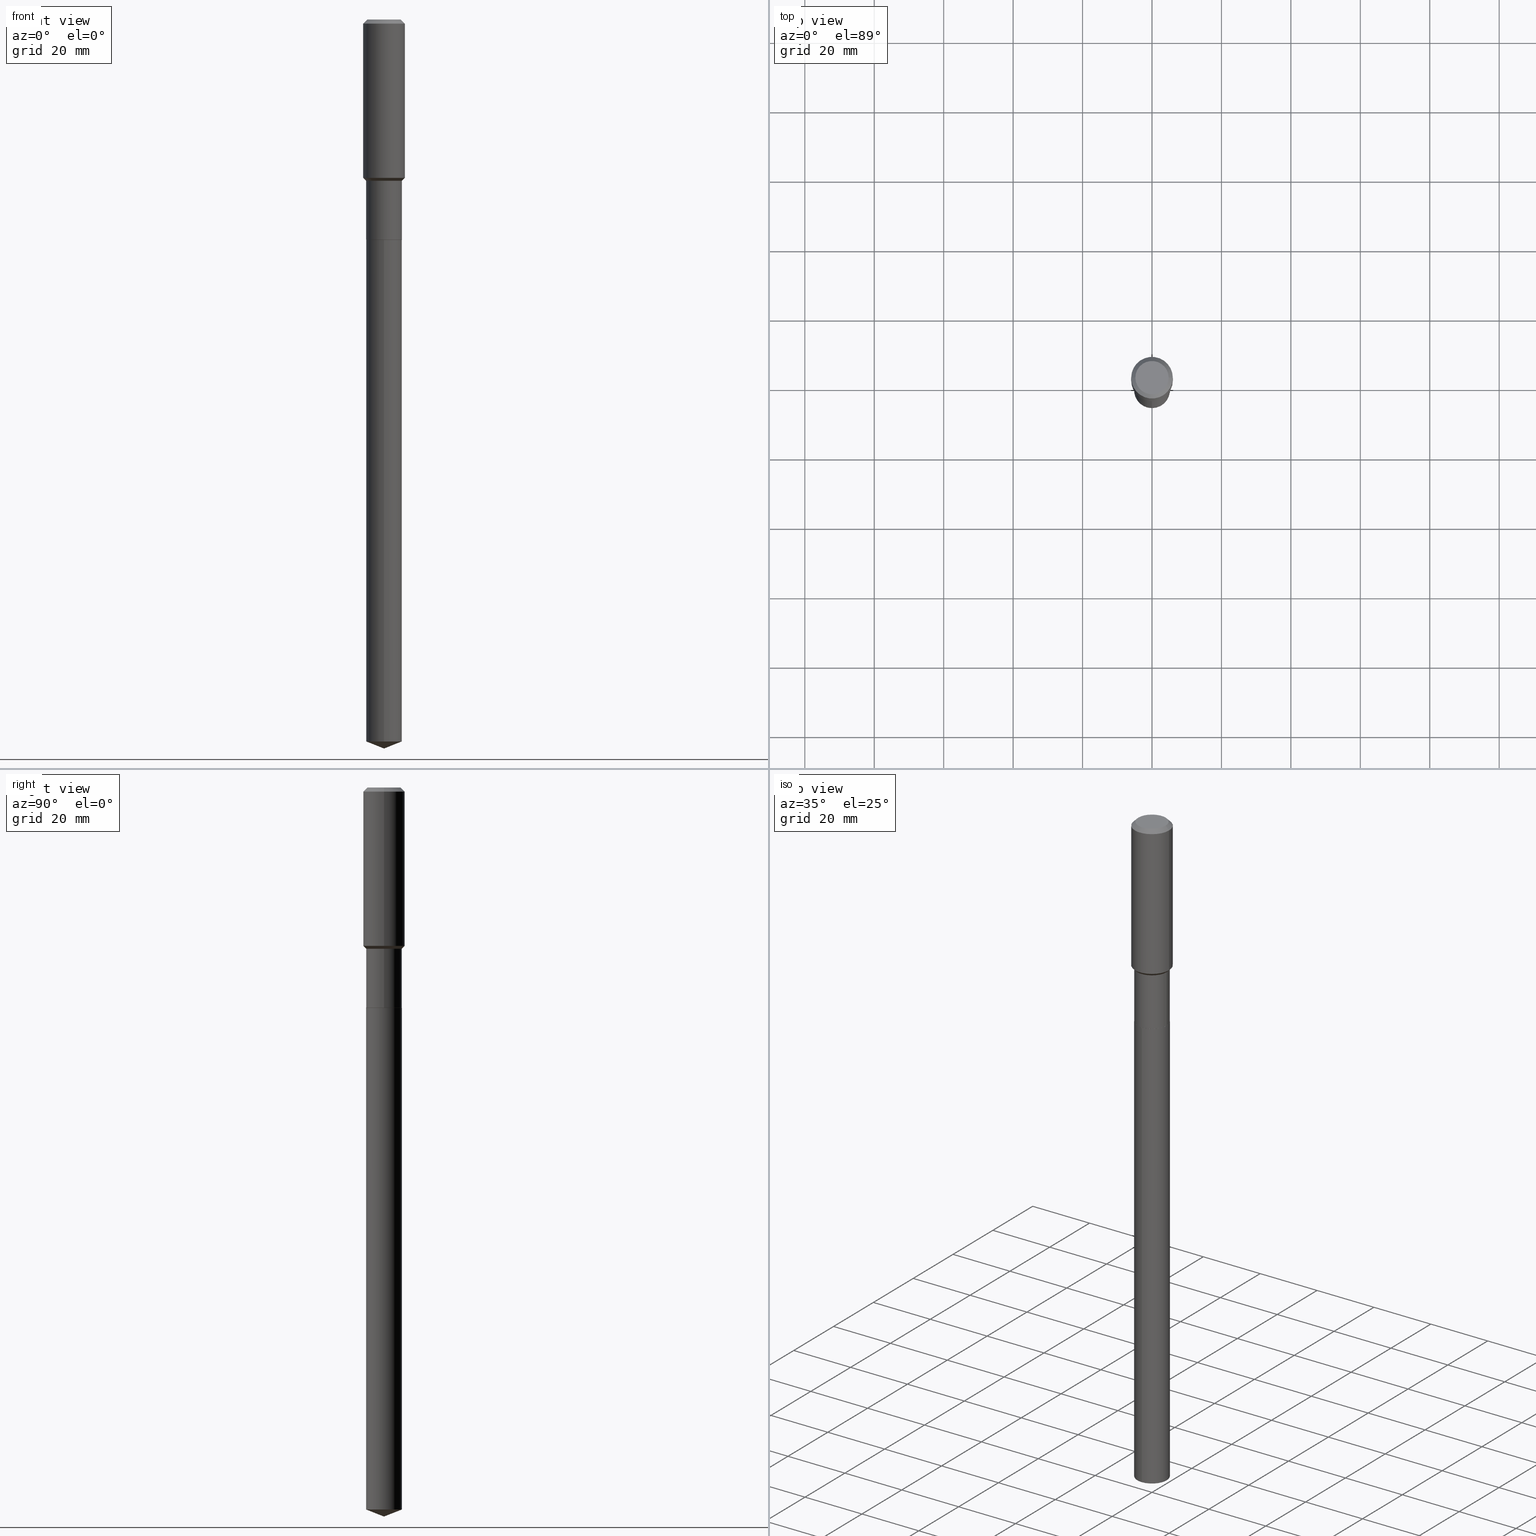
[diagram: canonical four-view strip — front | top / right | iso, engineering-drawing reading convention]
A machine part, canonical four-view strip (front | top / right | iso — engineering-drawing reading convention). The complete STEP part file that produces these views, byte-faithful:
ISO-10303-21;
HEADER;
FILE_DESCRIPTION (( 'STEP AP203' ),
    '1' );
FILE_NAME ('56531.STEP',
    '2024-04-24T18:19:59',
    ( '' ),
    ( '' ),
    'SwSTEP 2.0',
    'SolidWorks 2023',
    '' );
FILE_SCHEMA (( 'CONFIG_CONTROL_DESIGN' ));
ENDSEC;

DATA;
#1 = DIRECTION ( 'NONE',  ( -2.445468806185136597E-29, 3.491481338843145583E-15, 1.000000000000000000 ) ) ;
#2 = CARTESIAN_POINT ( 'NONE',  ( 6.111960187298512242E-29, -8.726259310170675626E-15, -2.499300000000000299 ) ) ;
#3 = LINE ( 'NONE', #21, #351 ) ;
#4 = EDGE_LOOP ( 'NONE', ( #82, #332, #108, #342 ) ) ;
#5 = AXIS2_PLACEMENT_3D ( 'NONE', #53, #347, #23 ) ;
#6 = CIRCLE ( 'NONE', #385, 0.2030999999999999472 ) ;
#7 = PLANE ( 'NONE',  #85 ) ;
#8 = ORIENTED_EDGE ( 'NONE', *, *, #418, .T. ) ;
#9 = FACE_OUTER_BOUND ( 'NONE', #257, .T. ) ;
#10 = ADVANCED_FACE ( 'NONE', ( #170 ), #208, .T. ) ;
#11 = CARTESIAN_POINT ( 'NONE',  ( 6.111960187298512242E-29, -8.726259310170675626E-15, -2.499300000000000299 ) ) ;
#12 = DIRECTION ( 'NONE',  ( -2.445519969606461702E-29, 3.491408069911766717E-15, 1.000000000000000000 ) ) ;
#13 = CYLINDRICAL_SURFACE ( 'NONE', #57, 0.2030999999999999750 ) ;
#14 = DIRECTION ( 'NONE',  ( 1.000000000000000000, -6.982962677686266711E-15, 4.876185090822587894E-29 ) ) ;
#15 = EDGE_CURVE ( 'NONE', #116, #111, #68, .T. ) ;
#16 = CARTESIAN_POINT ( 'NONE',  ( 0.000000000000000000, 0.000000000000000000, 0.000000000000000000 ) ) ;
#17 = CIRCLE ( 'NONE', #339, 0.2361999999999999933 ) ;
#18 = EDGE_LOOP ( 'NONE', ( #345, #86, #25, #431 ) ) ;
#19 = CARTESIAN_POINT ( 'NONE',  ( 6.111960187298512242E-29, -8.726259310170675626E-15, -2.499300000000000299 ) ) ;
#20 = CARTESIAN_POINT ( 'NONE',  ( 6.111960187298512242E-29, -8.726259310170675626E-15, -2.499300000000000299 ) ) ;
#21 = CARTESIAN_POINT ( 'NONE',  ( -1.418239719838019639E-15, -0.2031000000000087458, -2.499299999999999855 ) ) ;
#22 = COORDINATED_UNIVERSAL_TIME_OFFSET ( 5, 0, .BEHIND. ) ;
#23 = DIRECTION ( 'NONE',  ( -6.982962677686266711E-15, -1.000000000000000000, 5.380301316916323039E-15 ) ) ;
#24 = MANIFOLD_SOLID_BREP ( 'Body-Move/Copy2[1]', #369 ) ;
#25 = ORIENTED_EDGE ( 'NONE', *, *, #46, .T. ) ;
#26 = PERSON_AND_ORGANIZATION_ROLE ( 'creator' ) ;
#27 = ORIENTED_EDGE ( 'NONE', *, *, #209, .F. ) ;
#28 = FACE_OUTER_BOUND ( 'NONE', #18, .T. ) ;
#29 = AXIS2_PLACEMENT_3D ( 'NONE', #481, #239, #37 ) ;
#30 = APPROVAL_STATUS ( 'not_yet_approved' ) ;
#31 = APPROVAL_DATE_TIME ( #380, #429 ) ;
#32 = EDGE_CURVE ( 'NONE', #459, #427, #106, .T. ) ;
#33 = APPLICATION_CONTEXT ( 'configuration controlled 3d designs of mechanical parts and assemblies' ) ;
#34 = DIRECTION ( 'NONE',  ( 1.000000000000000000, -6.982962677686266711E-15, 0.000000000000000000 ) ) ;
#35 = LOCAL_TIME ( 14, 19, 59.00000000000000000, #286 ) ;
#36 = AXIS2_PLACEMENT_3D ( 'NONE', #236, #387, #355 ) ;
#37 = DIRECTION ( 'NONE',  ( 1.000000000000000000, -6.982962677686266711E-15, 4.876176775795935793E-29 ) ) ;
#38 = APPROVAL ( #210, 'UNSPECIFIED' ) ;
#39 = LINE ( 'NONE', #103, #489 ) ;
#40 = LINE ( 'NONE', #366, #95 ) ;
#41 = DIRECTION ( 'NONE',  ( 1.000000000000000000, -6.982962677686261189E-15, 0.000000000000000000 ) ) ;
#42 = AXIS2_PLACEMENT_3D ( 'NONE', #2, #144, #292 ) ;
#43 = LOCAL_TIME ( 14, 19, 59.00000000000000000, #479 ) ;
#44 = CONICAL_SURFACE ( 'NONE', #306, 99.94676754584408229, 1.195550537616133502 ) ;
#45 = DIRECTION ( 'NONE',  ( -2.445519969606461983E-29, 3.491408069911766717E-15, 1.000000000000000000 ) ) ;
#46 = EDGE_CURVE ( 'NONE', #336, #465, #139, .T. ) ;
#47 = EDGE_LOOP ( 'NONE', ( #240, #123, #268, #426 ) ) ;
#48 = CARTESIAN_POINT ( 'NONE',  ( -1.418239719837880602E-15, -0.2031000000000285910, -8.187996782402608531 ) ) ;
#49 = ORIENTED_EDGE ( 'NONE', *, *, #396, .F. ) ;
#50 = VERTEX_POINT ( 'NONE', #285 ) ;
#51 = ORIENTED_EDGE ( 'NONE', *, *, #169, .T. ) ;
#52 = DIRECTION ( 'NONE',  ( 2.438088387897960049E-29, -3.491481338843145188E-15, -1.000000000000000000 ) ) ;
#53 = CARTESIAN_POINT ( 'NONE',  ( 2.002378176970011888E-28, -2.858782116353224988E-14, -8.187996782402610307 ) ) ;
#54 = ORIENTED_EDGE ( 'NONE', *, *, #135, .T. ) ;
#55 = CALENDAR_DATE ( 2024, 24, 4 ) ;
#56 = AXIS2_PLACEMENT_3D ( 'NONE', #293, #69, #458 ) ;
#57 = AXIS2_PLACEMENT_3D ( 'NONE', #16, #229, #460 ) ;
#58 = VERTEX_POINT ( 'NONE', #87 ) ;
#59 = CARTESIAN_POINT ( 'NONE',  ( 0.000000000000000000, 0.000000000000000000, 0.000000000000000000 ) ) ;
#60 = AXIS2_PLACEMENT_3D ( 'NONE', #204, #64, #34 ) ;
#61 = APPROVAL_PERSON_ORGANIZATION ( #291, #409, #398 ) ;
#62 = DIRECTION ( 'NONE',  ( 2.445468806185136597E-29, -3.491481338843145583E-15, -1.000000000000000000 ) ) ;
#63 = ADVANCED_FACE ( 'NONE', ( #28 ), #372, .T. ) ;
#64 = DIRECTION ( 'NONE',  ( -2.445468806185136597E-29, 3.491481338843145583E-15, 1.000000000000000000 ) ) ;
#65 = ORIENTED_EDGE ( 'NONE', *, *, #352, .F. ) ;
#66 = PERSON_AND_ORGANIZATION ( #341, #245 ) ;
#67 = CARTESIAN_POINT ( 'NONE',  ( 4.392061975908506041E-29, -6.270700484562290099E-15, -1.796000000000000263 ) ) ;
#68 = CIRCLE ( 'NONE', #440, 0.2026000000000000023 ) ;
#69 = DIRECTION ( 'NONE',  ( -2.445519969606461983E-29, 3.491408069911766717E-15, 1.000000000000000000 ) ) ;
#70 = EDGE_CURVE ( 'NONE', #238, #459, #40, .T. ) ;
#71 = CARTESIAN_POINT ( 'NONE',  ( -0.2030999999999999472, -6.112278746860862354E-15, -1.829100000000000392 ) ) ;
#72 = APPROVAL_PERSON_ORGANIZATION ( #66, #38, #89 ) ;
#73 = AXIS2_PLACEMENT_3D ( 'NONE', #67, #221, #184 ) ;
#74 = DIRECTION ( 'NONE',  ( 1.000000000000000000, -6.982962677686266711E-15, 0.000000000000000000 ) ) ;
#75 = EDGE_LOOP ( 'NONE', ( #51, #83 ) ) ;
#76 = AXIS2_PLACEMENT_3D ( 'NONE', #397, #1, #294 ) ;
#77 = CIRCLE ( 'NONE', #118, 0.2026000000000000023 ) ;
#78 = ORIENTED_EDGE ( 'NONE', *, *, #358, .F. ) ;
#79 = ADVANCED_FACE ( 'NONE', ( #9 ), #469, .T. ) ;
#80 = ORIENTED_EDGE ( 'NONE', *, *, #137, .F. ) ;
#81 = ORIENTED_EDGE ( 'NONE', *, *, #177, .T. ) ;
#82 = ORIENTED_EDGE ( 'NONE', *, *, #442, .F. ) ;
#83 = ORIENTED_EDGE ( 'NONE', *, *, #451, .T. ) ;
#84 = EDGE_CURVE ( 'NONE', #111, #388, #433, .T. ) ;
#85 = AXIS2_PLACEMENT_3D ( 'NONE', #187, #335, #148 ) ;
#86 = ORIENTED_EDGE ( 'NONE', *, *, #131, .T. ) ;
#87 = CARTESIAN_POINT ( 'NONE',  ( -0.1889600000000000168, 1.401969416799070942E-15, 3.855188123706346622E-18 ) ) ;
#88 = ORIENTED_EDGE ( 'NONE', *, *, #161, .F. ) ;
#89 = APPROVAL_ROLE ( '' ) ;
#90 = FACE_OUTER_BOUND ( 'NONE', #4, .T. ) ;
#91 = APPROVAL_DATE_TIME ( #172, #38 ) ;
#92 = DIRECTION ( 'NONE',  ( -6.982962677686266711E-15, -1.000000000000000000, 5.380301316916323039E-15 ) ) ;
#93 = ORIENTED_EDGE ( 'NONE', *, *, #32, .F. ) ;
#94 = CARTESIAN_POINT ( 'NONE',  ( 1.155239464041864981E-30, -1.649375784469511119E-16, -0.04724000000000026789 ) ) ;
#95 = VECTOR ( 'NONE', #146, 39.37007874015748143 ) ;
#96 = DIRECTION ( 'NONE',  ( 1.000000000000000000, -6.982962677686266711E-15, 0.000000000000000000 ) ) ;
#97 = AXIS2_PLACEMENT_3D ( 'NONE', #193, #343, #307 ) ;
#98 = PLANE ( 'NONE',  #154 ) ;
#99 = ORIENTED_EDGE ( 'NONE', *, *, #177, .F. ) ;
#100 = DIRECTION ( 'NONE',  ( 1.000000000000000000, -6.982962677686266711E-15, 0.000000000000000000 ) ) ;
#101 = DIRECTION ( 'NONE',  ( -2.445468806185136877E-29, 3.491481338843145188E-15, 1.000000000000000000 ) ) ;
#102 = PRODUCT_DEFINITION_SHAPE ( 'NONE', 'NONE',  #467 ) ;
#103 = CARTESIAN_POINT ( 'NONE',  ( 0.2026000000000000023, -1.014100754866991103E-14, -2.499300000000000299 ) ) ;
#104 = CARTESIAN_POINT ( 'NONE',  ( -0.2362000000000001043, 1.678301941865357380E-15, -1.161852468318209317E-29 ) ) ;
#105 = EDGE_CURVE ( 'NONE', #388, #200, #252, .T. ) ;
#106 = CIRCLE ( 'NONE', #350, 0.2031000000000000028 ) ;
#107 = AXIS2_PLACEMENT_3D ( 'NONE', #308, #52, #463 ) ;
#108 = ORIENTED_EDGE ( 'NONE', *, *, #224, .T. ) ;
#109 = CARTESIAN_POINT ( 'NONE',  ( 0.2361999999999999933, -1.814313362916447440E-15, -0.04724000000000026789 ) ) ;
#110 = LINE ( 'NONE', #149, #378 ) ;
#111 = VERTEX_POINT ( 'NONE', #186 ) ;
#112 = CARTESIAN_POINT ( 'NONE',  ( -0.2030999999999999750, 1.443112296328763300E-15, -9.990357168307712801E-30 ) ) ;
#113 = CONICAL_SURFACE ( 'NONE', #406, 0.2030999999999999472, 0.7853981633974482790 ) ;
#114 = FACE_OUTER_BOUND ( 'NONE', #75, .T. ) ;
#115 = LINE ( 'NONE', #414, #228 ) ;
#116 = VERTEX_POINT ( 'NONE', #248 ) ;
#117 = APPROVAL_PERSON_ORGANIZATION ( #428, #429, #319 ) ;
#118 = AXIS2_PLACEMENT_3D ( 'NONE', #182, #365, #41 ) ;
#119 = DIRECTION ( 'NONE',  ( -2.445468806185136597E-29, 3.491481338843145583E-15, 1.000000000000000000 ) ) ;
#120 = APPLICATION_PROTOCOL_DEFINITION ( 'international standard', 'config_control_design', 1994, #33 ) ;
#121 = LINE ( 'NONE', #222, #368 ) ;
#122 = DATE_AND_TIME ( #55, #35 ) ;
#123 = ORIENTED_EDGE ( 'NONE', *, *, #287, .T. ) ;
#124 = ORIENTED_EDGE ( 'NONE', *, *, #15, .T. ) ;
#125 = EDGE_CURVE ( 'NONE', #140, #379, #371, .T. ) ;
#126 = ORIENTED_EDGE ( 'NONE', *, *, #370, .T. ) ;
#127 = CARTESIAN_POINT ( 'NONE',  ( 1.155239464041864981E-30, -1.649375784469511119E-16, -0.04724000000000026789 ) ) ;
#128 = CIRCLE ( 'NONE', #60, 0.2030999999999999472 ) ;
#129 = DIRECTION ( 'NONE',  ( 6.982962677686265922E-15, 1.000000000000000000, -3.491408069911766717E-15 ) ) ;
#130 = ORIENTED_EDGE ( 'NONE', *, *, #143, .T. ) ;
#131 = EDGE_CURVE ( 'NONE', #484, #336, #181, .T. ) ;
#132 = DIRECTION ( 'NONE',  ( 1.000000000000000000, -6.982962677686266711E-15, 4.876185090822587894E-29 ) ) ;
#133 = LINE ( 'NONE', #104, #260 ) ;
#134 = DIRECTION ( 'NONE',  ( 2.445519969606461422E-29, -3.491408069911766717E-15, -1.000000000000000000 ) ) ;
#135 = EDGE_CURVE ( 'NONE', #379, #465, #133, .T. ) ;
#136 = CALENDAR_DATE ( 2024, 24, 4 ) ;
#137 = EDGE_CURVE ( 'NONE', #454, #336, #110, .T. ) ;
#138 = CARTESIAN_POINT ( 'NONE',  ( 2.002378176970011888E-28, -2.858782116353224988E-14, -8.187996782402610307 ) ) ;
#139 = CIRCLE ( 'NONE', #410, 0.2361999999999999933 ) ;
#140 = VERTEX_POINT ( 'NONE', #71 ) ;
#141 = CIRCLE ( 'NONE', #262, 0.2031000000000000028 ) ;
#142 = DIRECTION ( 'NONE',  ( -6.982962677686266711E-15, -1.000000000000000000, 2.690150658458161520E-15 ) ) ;
#143 = EDGE_CURVE ( 'NONE', #58, #465, #246, .T. ) ;
#144 = DIRECTION ( 'NONE',  ( -2.445468806185136597E-29, 3.491481338843145583E-15, 1.000000000000000000 ) ) ;
#145 = CYLINDRICAL_SURFACE ( 'NONE', #56, 0.2031000000000000028 ) ;
#146 = DIRECTION ( 'NONE',  ( 6.611014441532104454E-15, 0.9304175679820322342, 0.3665012267242774846 ) ) ;
#147 = AXIS2_PLACEMENT_3D ( 'NONE', #59, #163, #317 ) ;
#148 = DIRECTION ( 'NONE',  ( 1.000000000000000000, -6.982962677686265922E-15, 4.876176775795935793E-29 ) ) ;
#149 = CARTESIAN_POINT ( 'NONE',  ( 0.2362000000000001043, -1.649375784469496920E-15, 1.151752954443000508E-29 ) ) ;
#150 = DIRECTION ( 'NONE',  ( -2.445519969606461983E-29, 3.491408069911766717E-15, 1.000000000000000000 ) ) ;
#151 = ADVANCED_FACE ( 'NONE', ( #255 ), #145, .T. ) ;
#152 = ORIENTED_EDGE ( 'NONE', *, *, #131, .F. ) ;
#153 = LOCAL_TIME ( 14, 19, 59.00000000000000000, #471 ) ;
#154 = AXIS2_PLACEMENT_3D ( 'NONE', #354, #134, #129 ) ;
#155 = MECHANICAL_CONTEXT ( 'NONE', #482, 'mechanical' ) ;
#156 = DESIGN_CONTEXT ( 'detailed design', #33, 'design' ) ;
#157 = PERSON_AND_ORGANIZATION ( #341, #245 ) ;
#158 = ORIENTED_EDGE ( 'NONE', *, *, #401, .T. ) ;
#159 = ORIENTED_EDGE ( 'NONE', *, *, #125, .T. ) ;
#160 = CC_DESIGN_APPROVAL ( #409, ( #467 ) ) ;
#161 = EDGE_CURVE ( 'NONE', #427, #459, #421, .T. ) ;
#162 = CC_DESIGN_PERSON_AND_ORGANIZATION_ASSIGNMENT ( #157, #400, ( #243 ) ) ;
#163 = DIRECTION ( 'NONE',  ( -2.445468806185136597E-29, 3.491481338843145583E-15, 1.000000000000000000 ) ) ;
#164 = CALENDAR_DATE ( 2024, 24, 4 ) ;
#165 = DIRECTION ( 'NONE',  ( 1.000000000000000000, -6.982962677686269866E-15, 0.000000000000000000 ) ) ;
#166 = DATE_AND_TIME ( #136, #441 ) ;
#167 = EDGE_LOOP ( 'NONE', ( #81, #231, #27, #298 ) ) ;
#168 = DATE_AND_TIME ( #206, #185 ) ;
#169 = EDGE_CURVE ( 'NONE', #58, #484, #270, .T. ) ;
#170 = FACE_OUTER_BOUND ( 'NONE', #47, .T. ) ;
#171 = DIRECTION ( 'NONE',  ( -2.445519969606461983E-29, 3.491408069911766717E-15, 1.000000000000000000 ) ) ;
#172 = DATE_AND_TIME ( #164, #153 ) ;
#173 = DIRECTION ( 'NONE',  ( 1.000000000000000000, -6.982962677686261189E-15, 0.000000000000000000 ) ) ;
#174 = ORIENTED_EDGE ( 'NONE', *, *, #15, .F. ) ;
#175 = DIRECTION ( 'NONE',  ( -6.982962677686265922E-15, -1.000000000000000000, 3.498627837349860255E-15 ) ) ;
#176 =( NAMED_UNIT ( * ) SI_UNIT ( $, .STERADIAN. ) SOLID_ANGLE_UNIT ( ) );
#177 = EDGE_CURVE ( 'NONE', #200, #388, #326, .T. ) ;
#178 = DIRECTION ( 'NONE',  ( 0.7071067811864267805, -2.468850131080992517E-15, 0.7071067811866682540 ) ) ;
#179 = DIRECTION ( 'NONE',  ( -0.7071067811865454633, 2.468850131082235367E-15, -0.7071067811865495711 ) ) ;
#180 = DIRECTION ( 'NONE',  ( 1.000000000000000000, -6.982962677686266711E-15, 0.000000000000000000 ) ) ;
#181 = LINE ( 'NONE', #402, #227 ) ;
#182 = CARTESIAN_POINT ( 'NONE',  ( 6.111960187298512242E-29, -8.726259310170675626E-15, -2.499300000000000299 ) ) ;
#183 = VECTOR ( 'NONE', #207, 39.37007874015748143 ) ;
#184 = DIRECTION ( 'NONE',  ( 1.000000000000000000, -6.982962677686266711E-15, 0.000000000000000000 ) ) ;
#185 = LOCAL_TIME ( 14, 19, 59.00000000000000000, #361 ) ;
#186 = CARTESIAN_POINT ( 'NONE',  ( -0.2026000000000000023, -7.284050500346599855E-15, -2.499300000000000299 ) ) ;
#187 = CARTESIAN_POINT ( 'NONE',  ( 6.111960187298512242E-29, -8.726259310170675626E-15, -2.499300000000000299 ) ) ;
#188 = CC_DESIGN_PERSON_AND_ORGANIZATION_ASSIGNMENT ( #413, #26, ( #218 ) ) ;
#189 = EDGE_LOOP ( 'NONE', ( #124, #241, #99, #264 ) ) ;
#190 = CC_DESIGN_SECURITY_CLASSIFICATION ( #243, ( #218 ) ) ;
#191 = CIRCLE ( 'NONE', #73, 0.2362000000000002153 ) ;
#192 = EDGE_CURVE ( 'NONE', #465, #336, #17, .T. ) ;
#193 = CARTESIAN_POINT ( 'NONE',  ( 0.000000000000000000, 0.000000000000000000, 0.000000000000000000 ) ) ;
#194 = EDGE_CURVE ( 'NONE', #140, #348, #128, .T. ) ;
#195 = CC_DESIGN_APPROVAL ( #429, ( #243 ) ) ;
#196 = VECTOR ( 'NONE', #486, 39.37007874015748143 ) ;
#197 = CIRCLE ( 'NONE', #214, 0.1889600000000000168 ) ;
#198 = ORIENTED_EDGE ( 'NONE', *, *, #316, .F. ) ;
#199 = PERSON_AND_ORGANIZATION ( #341, #245 ) ;
#200 = VERTEX_POINT ( 'NONE', #282 ) ;
#201 = FACE_OUTER_BOUND ( 'NONE', #320, .T. ) ;
#202 = ORIENTED_EDGE ( 'NONE', *, *, #192, .T. ) ;
#203 = SECURITY_CLASSIFICATION_LEVEL ( 'unclassified' ) ;
#204 = CARTESIAN_POINT ( 'NONE',  ( 4.473006993393234028E-29, -6.386268516877998368E-15, -1.829100000000000392 ) ) ;
#205 =( GEOMETRIC_REPRESENTATION_CONTEXT ( 3 ) GLOBAL_UNCERTAINTY_ASSIGNED_CONTEXT ( ( #349 ) ) GLOBAL_UNIT_ASSIGNED_CONTEXT ( ( #303, #215, #176 ) ) REPRESENTATION_CONTEXT ( 'NONE', 'WORKASPACE' ) );
#206 = CALENDAR_DATE ( 2024, 24, 4 ) ;
#207 = DIRECTION ( 'NONE',  ( -2.445468806185136877E-29, 3.491481338843145188E-15, 1.000000000000000000 ) ) ;
#208 = CYLINDRICAL_SURFACE ( 'NONE', #36, 0.2362000000000001043 ) ;
#209 = EDGE_CURVE ( 'NONE', #348, #140, #6, .T. ) ;
#210 = APPROVAL_STATUS ( 'not_yet_approved' ) ;
#211 = DIRECTION ( 'NONE',  ( 0.7071067811865454633, -7.319954787623248157E-15, -0.7071067811865495711 ) ) ;
#212 = AXIS2_PLACEMENT_3D ( 'NONE', #434, #487, #165 ) ;
#213 = CARTESIAN_POINT ( 'NONE',  ( 0.2030999999999999472, -7.804508236716079144E-15, -1.829100000000000392 ) ) ;
#214 = AXIS2_PLACEMENT_3D ( 'NONE', #235, #386, #132 ) ;
#215 =( NAMED_UNIT ( * ) PLANE_ANGLE_UNIT ( ) SI_UNIT ( $, .RADIAN. ) );
#216 = DIRECTION ( 'NONE',  ( 0.7071067811865474617, -2.468850131082256666E-15, 0.7071067811865474617 ) ) ;
#217 = ADVANCED_FACE ( 'NONE', ( #201 ), #44, .T. ) ;
#218 = PRODUCT_DEFINITION_FORMATION_WITH_SPECIFIED_SOURCE ( 'ANY', '', #472, .NOT_KNOWN. ) ;
#219 = ADVANCED_FACE ( 'NONE', ( #90 ), #247, .T. ) ;
#220 = DIRECTION ( 'NONE',  ( -1.000000000000000000, 6.982962677686266711E-15, 0.000000000000000000 ) ) ;
#221 = DIRECTION ( 'NONE',  ( -2.445468806185136597E-29, 3.491481338843145583E-15, 1.000000000000000000 ) ) ;
#222 = CARTESIAN_POINT ( 'NONE',  ( 1.443112296328824437E-15, 0.2030999999999912597, -2.499300000000000743 ) ) ;
#223 = ADVANCED_FACE ( 'NONE', ( #323 ), #98, .F. ) ;
#224 = EDGE_CURVE ( 'NONE', #200, #348, #313, .T. ) ;
#225 = CALENDAR_DATE ( 2024, 24, 4 ) ;
#226 = FACE_OUTER_BOUND ( 'NONE', #279, .T. ) ;
#227 = VECTOR ( 'NONE', #211, 39.37007874015748143 ) ;
#228 = VECTOR ( 'NONE', #216, 39.37007874015748854 ) ;
#229 = DIRECTION ( 'NONE',  ( -2.445468806185136597E-29, 3.491481338843145583E-15, 1.000000000000000000 ) ) ;
#230 = EDGE_LOOP ( 'NONE', ( #152, #329, #130, #202 ) ) ;
#231 = ORIENTED_EDGE ( 'NONE', *, *, #442, .T. ) ;
#232 = ORIENTED_EDGE ( 'NONE', *, *, #70, .F. ) ;
#233 = ORIENTED_EDGE ( 'NONE', *, *, #358, .T. ) ;
#234 = CC_DESIGN_PERSON_AND_ORGANIZATION_ASSIGNMENT ( #346, #462, ( #472 ) ) ;
#235 = CARTESIAN_POINT ( 'NONE',  ( -9.427742298522546243E-47, 1.346031739168365344E-32, 3.855188123715862256E-18 ) ) ;
#236 = CARTESIAN_POINT ( 'NONE',  ( 0.000000000000000000, 0.000000000000000000, 0.000000000000000000 ) ) ;
#237 = DIRECTION ( 'NONE',  ( -2.445468806185136597E-29, 3.491481338843145583E-15, 1.000000000000000000 ) ) ;
#238 = VERTEX_POINT ( 'NONE', #280 ) ;
#239 = DIRECTION ( 'NONE',  ( -2.445468806185136597E-29, 3.491481338843145583E-15, 1.000000000000000000 ) ) ;
#240 = ORIENTED_EDGE ( 'NONE', *, *, #135, .F. ) ;
#241 = ORIENTED_EDGE ( 'NONE', *, *, #84, .T. ) ;
#242 = CIRCLE ( 'NONE', #311, 0.2362000000000002153 ) ;
#243 = SECURITY_CLASSIFICATION ( '', '', #203 ) ;
#244 = SHAPE_DEFINITION_REPRESENTATION ( #102, #278 ) ;
#245 = ORGANIZATION ( 'UNSPECIFIED', 'UNSPECIFIED', '' ) ;
#246 = LINE ( 'NONE', #490, #300 ) ;
#247 = CYLINDRICAL_SURFACE ( 'NONE', #29, 0.2030999999999999750 ) ;
#248 = CARTESIAN_POINT ( 'NONE',  ( 0.2026000000000000023, -1.014100754866991103E-14, -2.499300000000000299 ) ) ;
#249 = DIRECTION ( 'NONE',  ( -6.497071151882156124E-15, -0.9304175679820297917, 0.3665012267242840349 ) ) ;
#250 = ADVANCED_FACE ( 'NONE', ( #473 ), #461, .T. ) ;
#251 = CARTESIAN_POINT ( 'NONE',  ( 0.2362000000000002153, -7.920076269031788202E-15, -1.796000000000000263 ) ) ;
#252 = CIRCLE ( 'NONE', #76, 0.2031000000000000028 ) ;
#253 = CARTESIAN_POINT ( 'NONE',  ( -0.2031000000000000028, -6.112278746860861565E-15, -2.498800000000000132 ) ) ;
#254 = VECTOR ( 'NONE', #249, 39.37007874015748854 ) ;
#255 = FACE_OUTER_BOUND ( 'NONE', #256, .T. ) ;
#256 = EDGE_LOOP ( 'NONE', ( #449, #392, #353, #275 ) ) ;
#257 = EDGE_LOOP ( 'NONE', ( #424, #54, #425, #80 ) ) ;
#258 = CARTESIAN_POINT ( 'NONE',  ( -9.427742298522546243E-47, 1.346031739168365344E-32, 3.855188123715862256E-18 ) ) ;
#259 = DIRECTION ( 'NONE',  ( -2.445468806185136877E-29, 3.491481338843145188E-15, 1.000000000000000000 ) ) ;
#260 = VECTOR ( 'NONE', #101, 39.37007874015748143 ) ;
#261 = DIRECTION ( 'NONE',  ( -2.445468806185136597E-29, 3.491481338843145583E-15, 1.000000000000000000 ) ) ;
#262 = AXIS2_PLACEMENT_3D ( 'NONE', #19, #302, #337 ) ;
#263 = LENGTH_MEASURE_WITH_UNIT ( LENGTH_MEASURE( 0.02539999999999999897 ), #305 );
#264 = ORIENTED_EDGE ( 'NONE', *, *, #370, .F. ) ;
#265 = CARTESIAN_POINT ( 'NONE',  ( 0.1889600000000000168, -1.540873453589747738E-15, 3.855188123725863225E-18 ) ) ;
#266 = ORIENTED_EDGE ( 'NONE', *, *, #314, .T. ) ;
#267 = DIRECTION ( 'NONE',  ( -2.445519969606461983E-29, 3.491408069911766717E-15, 1.000000000000000000 ) ) ;
#268 = ORIENTED_EDGE ( 'NONE', *, *, #137, .T. ) ;
#269 = CLOSED_SHELL ( 'NONE', ( #377, #63, #79, #272, #464, #219, #474, #10, #250, #416, #324, #289 ) ) ;
#270 = CIRCLE ( 'NONE', #363, 0.1889600000000000168 ) ;
#271 = CARTESIAN_POINT ( 'NONE',  ( 4.473006993393234028E-29, -6.386268516877998368E-15, -1.829100000000000392 ) ) ;
#272 = ADVANCED_FACE ( 'NONE', ( #360 ), #448, .T. ) ;
#273 = ORIENTED_EDGE ( 'NONE', *, *, #314, .F. ) ;
#274 = ORIENTED_EDGE ( 'NONE', *, *, #125, .F. ) ;
#275 = ORIENTED_EDGE ( 'NONE', *, *, #401, .F. ) ;
#276 = AXIS2_PLACEMENT_3D ( 'NONE', #20, #119, #457 ) ;
#277 = CC_DESIGN_PERSON_AND_ORGANIZATION_ASSIGNMENT ( #199, #393, ( #218 ) ) ;
#278 = ADVANCED_BREP_SHAPE_REPRESENTATION ( '56531', ( #24, #338, #97 ), #205 ) ;
#279 = EDGE_LOOP ( 'NONE', ( #327, #8, #65, #49 ) ) ;
#280 = CARTESIAN_POINT ( 'NONE',  ( 2.021955910870623069E-28, -2.886696192203048897E-14, -8.268000000000000682 ) ) ;
#281 = CARTESIAN_POINT ( 'NONE',  ( 1.155239464041864981E-30, -1.649375784469511119E-16, -0.04724000000000026789 ) ) ;
#282 = CARTESIAN_POINT ( 'NONE',  ( 0.2031000000000000028, -1.014275328933933332E-14, -2.498800000000000132 ) ) ;
#283 = DATE_TIME_ROLE ( 'creation_date' ) ;
#284 = CONICAL_SURFACE ( 'NONE', #276, 0.2026000000000000023, 0.7853981633972775267 ) ;
#285 = CARTESIAN_POINT ( 'NONE',  ( 1.443112296328964657E-15, 0.2030999999999913153, -2.499300000000000743 ) ) ;
#286 = COORDINATED_UNIVERSAL_TIME_OFFSET ( 5, 0, .BEHIND. ) ;
#287 = EDGE_CURVE ( 'NONE', #379, #454, #242, .T. ) ;
#288 = LINE ( 'NONE', #445, #254 ) ;
#289 = ADVANCED_FACE ( 'NONE', ( #310 ), #284, .T. ) ;
#290 = DIRECTION ( 'NONE',  ( -0.7071067811865474617, 7.493145998870352582E-15, 0.7071067811865474617 ) ) ;
#291 = PERSON_AND_ORGANIZATION ( #341, #245 ) ;
#292 = DIRECTION ( 'NONE',  ( 1.000000000000000000, -6.982962677686261189E-15, 0.000000000000000000 ) ) ;
#293 = CARTESIAN_POINT ( 'NONE',  ( 6.111960187298512242E-29, -8.726259310170675626E-15, -2.499300000000000299 ) ) ;
#294 = DIRECTION ( 'NONE',  ( 1.000000000000000000, -6.982962677686269866E-15, 0.000000000000000000 ) ) ;
#295 = ORIENTED_EDGE ( 'NONE', *, *, #287, .F. ) ;
#296 = CC_DESIGN_PERSON_AND_ORGANIZATION_ASSIGNMENT ( #321, #483, ( #467 ) ) ;
#297 = DIRECTION ( 'NONE',  ( -2.445468806185136877E-29, 3.491481338843145188E-15, 1.000000000000000000 ) ) ;
#298 = ORIENTED_EDGE ( 'NONE', *, *, #224, .F. ) ;
#299 = DIRECTION ( 'NONE',  ( -6.982962677686266711E-15, -1.000000000000000000, 2.690150658458161520E-15 ) ) ;
#300 = VECTOR ( 'NONE', #179, 39.37007874015748143 ) ;
#301 = VERTEX_POINT ( 'NONE', #453 ) ;
#302 = DIRECTION ( 'NONE',  ( -2.445519969606461983E-29, 3.491408069911766717E-15, 1.000000000000000000 ) ) ;
#303 =( CONVERSION_BASED_UNIT ( 'INCH', #263 ) LENGTH_UNIT ( ) NAMED_UNIT ( #439 ) );
#304 = ORIENTED_EDGE ( 'NONE', *, *, #209, .T. ) ;
#305 =( LENGTH_UNIT ( ) NAMED_UNIT ( * ) SI_UNIT ( $, .METRE. ) );
#306 = AXIS2_PLACEMENT_3D ( 'NONE', #444, #171, #175 ) ;
#307 = DIRECTION ( 'NONE',  ( 1.000000000000000000, 0.000000000000000000, 0.000000000000000000 ) ) ;
#308 = CARTESIAN_POINT ( 'NONE',  ( -4.713871149261273121E-47, 6.730158695841826722E-33, 1.927594061857931128E-18 ) ) ;
#309 = PRODUCT_RELATED_PRODUCT_CATEGORY ( 'detail', '', ( #472 ) ) ;
#310 = FACE_OUTER_BOUND ( 'NONE', #325, .T. ) ;
#311 = AXIS2_PLACEMENT_3D ( 'NONE', #334, #261, #74 ) ;
#312 = EDGE_LOOP ( 'NONE', ( #304, #159, #198, #273 ) ) ;
#313 = LINE ( 'NONE', #362, #183 ) ;
#314 = EDGE_CURVE ( 'NONE', #348, #454, #115, .T. ) ;
#315 = APPROVAL_STATUS ( 'not_yet_approved' ) ;
#316 = EDGE_CURVE ( 'NONE', #454, #379, #191, .T. ) ;
#317 = DIRECTION ( 'NONE',  ( 1.000000000000000000, -6.982962677686266711E-15, 4.876176775795935793E-29 ) ) ;
#318 = CARTESIAN_POINT ( 'NONE',  ( 1.155239464041864981E-30, -1.649375784469511119E-16, -0.04724000000000026789 ) ) ;
#319 = APPROVAL_ROLE ( '' ) ;
#320 = EDGE_LOOP ( 'NONE', ( #232, #233, #93 ) ) ;
#321 = PERSON_AND_ORGANIZATION ( #341, #245 ) ;
#322 = DIRECTION ( 'NONE',  ( -2.445519969606461983E-29, 3.491408069911766717E-15, 1.000000000000000000 ) ) ;
#323 = FACE_OUTER_BOUND ( 'NONE', #384, .T. ) ;
#324 = ADVANCED_FACE ( 'NONE', ( #330 ), #7, .F. ) ;
#325 = EDGE_LOOP ( 'NONE', ( #443, #475, #126, #403 ) ) ;
#326 = CIRCLE ( 'NONE', #212, 0.2031000000000000028 ) ;
#327 = ORIENTED_EDGE ( 'NONE', *, *, #161, .T. ) ;
#328 = FACE_OUTER_BOUND ( 'NONE', #189, .T. ) ;
#329 = ORIENTED_EDGE ( 'NONE', *, *, #169, .F. ) ;
#330 = FACE_OUTER_BOUND ( 'NONE', #394, .T. ) ;
#331 = AXIS2_PLACEMENT_3D ( 'NONE', #374, #45, #299 ) ;
#332 = ORIENTED_EDGE ( 'NONE', *, *, #105, .T. ) ;
#333 = DIRECTION ( 'NONE',  ( 2.445468806185136597E-29, -3.491481338843145583E-15, -1.000000000000000000 ) ) ;
#334 = CARTESIAN_POINT ( 'NONE',  ( 4.392061975908506041E-29, -6.270700484562290099E-15, -1.796000000000000263 ) ) ;
#335 = DIRECTION ( 'NONE',  ( -2.438088387897960049E-29, 3.491481338843145188E-15, 1.000000000000000000 ) ) ;
#336 = VERTEX_POINT ( 'NONE', #109 ) ;
#337 = DIRECTION ( 'NONE',  ( -6.982962677686266711E-15, -1.000000000000000000, 2.690150658458161520E-15 ) ) ;
#338 = MANIFOLD_SOLID_BREP ( 'Body-Move/Copy2[2]', #269 ) ;
#339 = AXIS2_PLACEMENT_3D ( 'NONE', #94, #390, #478 ) ;
#340 = AXIS2_PLACEMENT_3D ( 'NONE', #127, #62, #437 ) ;
#341 = PERSON ( 'UNSPECIFIED', 'UNSPECIFIED', 'UNSPECIFIED', ('UNSPECIFIED'), ('UNSPECIFIED'), ('UNSPECIFIED') ) ;
#342 = ORIENTED_EDGE ( 'NONE', *, *, #194, .F. ) ;
#343 = DIRECTION ( 'NONE',  ( 0.000000000000000000, 0.000000000000000000, 1.000000000000000000 ) ) ;
#344 = DIRECTION ( 'NONE',  ( -6.982962677686265922E-15, -1.000000000000000000, 3.498627837349860255E-15 ) ) ;
#345 = ORIENTED_EDGE ( 'NONE', *, *, #451, .F. ) ;
#346 = PERSON_AND_ORGANIZATION ( #341, #245 ) ;
#347 = DIRECTION ( 'NONE',  ( -2.445519969606461983E-29, 3.491408069911766717E-15, 1.000000000000000000 ) ) ;
#348 = VERTEX_POINT ( 'NONE', #213 ) ;
#349 = UNCERTAINTY_MEASURE_WITH_UNIT (LENGTH_MEASURE( 1.000000000000000082E-05 ), #303, 'distance_accuracy_value', 'NONE');
#350 = AXIS2_PLACEMENT_3D ( 'NONE', #138, #322, #92 ) ;
#351 = VECTOR ( 'NONE', #12, 39.37007874015748143 ) ;
#352 = EDGE_CURVE ( 'NONE', #301, #50, #423, .T. ) ;
#353 = ORIENTED_EDGE ( 'NONE', *, *, #396, .T. ) ;
#354 = CARTESIAN_POINT ( 'NONE',  ( 6.111960187298512242E-29, -8.726259310170675626E-15, -2.499300000000000299 ) ) ;
#355 = DIRECTION ( 'NONE',  ( 1.000000000000000000, -6.982962677686266711E-15, 4.876176775795935793E-29 ) ) ;
#356 = CC_DESIGN_APPROVAL ( #38, ( #218 ) ) ;
#357 = VECTOR ( 'NONE', #259, 39.37007874015748143 ) ;
#358 = EDGE_CURVE ( 'NONE', #238, #427, #288, .T. ) ;
#359 = APPROVAL_DATE_TIME ( #168, #409 ) ;
#360 = FACE_OUTER_BOUND ( 'NONE', #312, .T. ) ;
#361 = COORDINATED_UNIVERSAL_TIME_OFFSET ( 5, 0, .BEHIND. ) ;
#362 = CARTESIAN_POINT ( 'NONE',  ( 0.2030999999999999750, -1.418239719838080578E-15, 9.903515031641544743E-30 ) ) ;
#363 = AXIS2_PLACEMENT_3D ( 'NONE', #258, #412, #14 ) ;
#364 = AXIS2_PLACEMENT_3D ( 'NONE', #11, #150, #142 ) ;
#365 = DIRECTION ( 'NONE',  ( -2.445468806185136597E-29, 3.491481338843145583E-15, 1.000000000000000000 ) ) ;
#366 = CARTESIAN_POINT ( 'NONE',  ( 2.021956135129218263E-28, -2.886696192203049528E-14, -8.268000000000000682 ) ) ;
#367 = DIRECTION ( 'NONE',  ( -2.445468806185136597E-29, 3.491481338843145583E-15, 1.000000000000000000 ) ) ;
#368 = VECTOR ( 'NONE', #417, 39.37007874015748143 ) ;
#369 = CLOSED_SHELL ( 'NONE', ( #419, #404, #217, #151, #223 ) ) ;
#370 = EDGE_CURVE ( 'NONE', #116, #200, #39, .T. ) ;
#371 = LINE ( 'NONE', #450, #488 ) ;
#372 = CONICAL_SURFACE ( 'NONE', #430, 0.2361999999999999933, 0.7853981633974453924 ) ;
#373 = AXIS2_PLACEMENT_3D ( 'NONE', #485, #367, #180 ) ;
#374 = CARTESIAN_POINT ( 'NONE',  ( 6.111960187298512242E-29, -8.726259310170675626E-15, -2.499300000000000299 ) ) ;
#375 = CYLINDRICAL_SURFACE ( 'NONE', #331, 0.2031000000000000028 ) ;
#376 = PLANE ( 'NONE',  #107 ) ;
#377 = ADVANCED_FACE ( 'NONE', ( #328 ), #477, .T. ) ;
#378 = VECTOR ( 'NONE', #297, 39.37007874015748143 ) ;
#379 = VERTEX_POINT ( 'NONE', #446 ) ;
#380 = DATE_AND_TIME ( #225, #43 ) ;
#381 = DIRECTION ( 'NONE',  ( 1.000000000000000000, -6.982962677686266711E-15, 0.000000000000000000 ) ) ;
#382 = CC_DESIGN_DATE_AND_TIME_ASSIGNMENT ( #166, #283, ( #467 ) ) ;
#383 = DIRECTION ( 'NONE',  ( -2.445468806185136597E-29, 3.491481338843145583E-15, 1.000000000000000000 ) ) ;
#384 = EDGE_LOOP ( 'NONE', ( #415, #158 ) ) ;
#385 = AXIS2_PLACEMENT_3D ( 'NONE', #395, #237, #100 ) ;
#386 = DIRECTION ( 'NONE',  ( -2.445468806185136597E-29, 3.491481338843145583E-15, 1.000000000000000000 ) ) ;
#387 = DIRECTION ( 'NONE',  ( -2.445468806185136597E-29, 3.491481338843145583E-15, 1.000000000000000000 ) ) ;
#388 = VERTEX_POINT ( 'NONE', #253 ) ;
#389 = EDGE_CURVE ( 'NONE', #111, #116, #77, .T. ) ;
#390 = DIRECTION ( 'NONE',  ( -2.445468806185136597E-29, 3.491481338843145583E-15, 1.000000000000000000 ) ) ;
#391 = ORIENTED_EDGE ( 'NONE', *, *, #70, .T. ) ;
#392 = ORIENTED_EDGE ( 'NONE', *, *, #32, .T. ) ;
#393 = PERSON_AND_ORGANIZATION_ROLE ( 'design_supplier' ) ;
#394 = EDGE_LOOP ( 'NONE', ( #174, #407 ) ) ;
#395 = CARTESIAN_POINT ( 'NONE',  ( 4.473006993393234028E-29, -6.386268516877998368E-15, -1.829100000000000392 ) ) ;
#396 = EDGE_CURVE ( 'NONE', #427, #301, #3, .T. ) ;
#397 = CARTESIAN_POINT ( 'NONE',  ( 6.110737452895419441E-29, -8.724513569501253334E-15, -2.498800000000000132 ) ) ;
#398 = APPROVAL_ROLE ( '' ) ;
#399 = CARTESIAN_POINT ( 'NONE',  ( 6.111960187298512242E-29, -8.726259310170675626E-15, -2.499300000000000299 ) ) ;
#400 = PERSON_AND_ORGANIZATION_ROLE ( 'classification_officer' ) ;
#401 = EDGE_CURVE ( 'NONE', #50, #301, #141, .T. ) ;
#402 = CARTESIAN_POINT ( 'NONE',  ( 0.2361999999999999933, -1.785387205520586782E-15, -0.04724000000000026789 ) ) ;
#403 = ORIENTED_EDGE ( 'NONE', *, *, #105, .F. ) ;
#404 = ADVANCED_FACE ( 'NONE', ( #455 ), #411, .T. ) ;
#405 = CARTESIAN_POINT ( 'NONE',  ( 1.443112296328963671E-15, 0.2030999999999714700, -8.187996782402610307 ) ) ;
#406 = AXIS2_PLACEMENT_3D ( 'NONE', #271, #383, #381 ) ;
#407 = ORIENTED_EDGE ( 'NONE', *, *, #389, .F. ) ;
#408 = CARTESIAN_POINT ( 'NONE',  ( -0.2361999999999999933, -1.539517089639262929E-15, -0.04724000000000026789 ) ) ;
#409 = APPROVAL ( #30, 'UNSPECIFIED' ) ;
#410 = AXIS2_PLACEMENT_3D ( 'NONE', #281, #438, #96 ) ;
#411 = CONICAL_SURFACE ( 'NONE', #432, 99.94676754584408229, 1.195550537616133502 ) ;
#412 = DIRECTION ( 'NONE',  ( -2.445468806185136597E-29, 3.491481338843145583E-15, 1.000000000000000000 ) ) ;
#413 = PERSON_AND_ORGANIZATION ( #341, #245 ) ;
#414 = CARTESIAN_POINT ( 'NONE',  ( 0.2030999999999999472, -7.804508236716079144E-15, -1.829100000000000392 ) ) ;
#415 = ORIENTED_EDGE ( 'NONE', *, *, #352, .T. ) ;
#416 = ADVANCED_FACE ( 'NONE', ( #114 ), #376, .F. ) ;
#417 = DIRECTION ( 'NONE',  ( -2.445519969606461702E-29, 3.491408069911766717E-15, 1.000000000000000000 ) ) ;
#418 = EDGE_CURVE ( 'NONE', #459, #50, #121, .T. ) ;
#419 = ADVANCED_FACE ( 'NONE', ( #226 ), #375, .T. ) ;
#420 = FACE_OUTER_BOUND ( 'NONE', #435, .T. ) ;
#421 = CIRCLE ( 'NONE', #5, 0.2031000000000000028 ) ;
#422 = CARTESIAN_POINT ( 'NONE',  ( -7.606088252806662715E-28, 1.085898655833768264E-13, 31.10207874015748430 ) ) ;
#423 = CIRCLE ( 'NONE', #364, 0.2031000000000000028 ) ;
#424 = ORIENTED_EDGE ( 'NONE', *, *, #316, .T. ) ;
#425 = ORIENTED_EDGE ( 'NONE', *, *, #46, .F. ) ;
#426 = ORIENTED_EDGE ( 'NONE', *, *, #192, .F. ) ;
#427 = VERTEX_POINT ( 'NONE', #48 ) ;
#428 = PERSON_AND_ORGANIZATION ( #341, #245 ) ;
#429 = APPROVAL ( #315, 'UNSPECIFIED' ) ;
#430 = AXIS2_PLACEMENT_3D ( 'NONE', #318, #333, #220 ) ;
#431 = ORIENTED_EDGE ( 'NONE', *, *, #143, .F. ) ;
#432 = AXIS2_PLACEMENT_3D ( 'NONE', #422, #267, #344 ) ;
#433 = LINE ( 'NONE', #476, #196 ) ;
#434 = CARTESIAN_POINT ( 'NONE',  ( 6.110737452895419441E-29, -8.724513569501253334E-15, -2.498800000000000132 ) ) ;
#435 = EDGE_LOOP ( 'NONE', ( #274, #468, #266, #295 ) ) ;
#436 = EDGE_LOOP ( 'NONE', ( #78, #391, #88 ) ) ;
#437 = DIRECTION ( 'NONE',  ( -1.000000000000000000, 6.982962677686266711E-15, 0.000000000000000000 ) ) ;
#438 = DIRECTION ( 'NONE',  ( -2.445468806185136597E-29, 3.491481338843145583E-15, 1.000000000000000000 ) ) ;
#439 = DIMENSIONAL_EXPONENTS ( 1.000000000000000000, 0.000000000000000000, 0.000000000000000000, 0.000000000000000000, 0.000000000000000000, 0.000000000000000000, 0.000000000000000000 ) ;
#440 = AXIS2_PLACEMENT_3D ( 'NONE', #399, #480, #173 ) ;
#441 = LOCAL_TIME ( 14, 19, 59.00000000000000000, #22 ) ;
#442 = EDGE_CURVE ( 'NONE', #388, #140, #452, .T. ) ;
#443 = ORIENTED_EDGE ( 'NONE', *, *, #84, .F. ) ;
#444 = CARTESIAN_POINT ( 'NONE',  ( -7.606088252806662715E-28, 1.085898655833768264E-13, 31.10207874015748430 ) ) ;
#445 = CARTESIAN_POINT ( 'NONE',  ( 2.021930336322839007E-28, -2.886732816411088274E-14, -8.268000000000000682 ) ) ;
#446 = CARTESIAN_POINT ( 'NONE',  ( -0.2362000000000002153, -4.592398542696931338E-15, -1.796000000000000263 ) ) ;
#447 = CC_DESIGN_DATE_AND_TIME_ASSIGNMENT ( #122, #466, ( #243 ) ) ;
#448 = CONICAL_SURFACE ( 'NONE', #373, 0.2030999999999999472, 0.7853981633974482790 ) ;
#449 = ORIENTED_EDGE ( 'NONE', *, *, #418, .F. ) ;
#450 = CARTESIAN_POINT ( 'NONE',  ( -0.2030999999999999472, -4.943156220549235266E-15, -1.829100000000000392 ) ) ;
#451 = EDGE_CURVE ( 'NONE', #484, #58, #197, .T. ) ;
#452 = LINE ( 'NONE', #112, #357 ) ;
#453 = CARTESIAN_POINT ( 'NONE',  ( -1.418239719838019639E-15, -0.2031000000000087458, -2.499299999999999855 ) ) ;
#454 = VERTEX_POINT ( 'NONE', #251 ) ;
#455 = FACE_OUTER_BOUND ( 'NONE', #436, .T. ) ;
#456 = FACE_OUTER_BOUND ( 'NONE', #167, .T. ) ;
#457 = DIRECTION ( 'NONE',  ( 1.000000000000000000, -6.982962677686261189E-15, 0.000000000000000000 ) ) ;
#458 = DIRECTION ( 'NONE',  ( -6.982962677686266711E-15, -1.000000000000000000, 2.690150658458161520E-15 ) ) ;
#459 = VERTEX_POINT ( 'NONE', #405 ) ;
#460 = DIRECTION ( 'NONE',  ( 1.000000000000000000, -6.982962677686266711E-15, 4.876176775795935793E-29 ) ) ;
#461 = CONICAL_SURFACE ( 'NONE', #340, 0.2361999999999999933, 0.7853981633974453924 ) ;
#462 = PERSON_AND_ORGANIZATION_ROLE ( 'design_owner' ) ;
#463 = DIRECTION ( 'NONE',  ( -1.000000000000000000, 6.982962677686265922E-15, -4.876176775795935793E-29 ) ) ;
#464 = ADVANCED_FACE ( 'NONE', ( #456 ), #13, .T. ) ;
#465 = VERTEX_POINT ( 'NONE', #408 ) ;
#466 = DATE_TIME_ROLE ( 'classification_date' ) ;
#467 = PRODUCT_DEFINITION ( 'UNKNOWN', '', #218, #156 ) ;
#468 = ORIENTED_EDGE ( 'NONE', *, *, #194, .T. ) ;
#469 = CYLINDRICAL_SURFACE ( 'NONE', #147, 0.2362000000000001043 ) ;
#470 = APPLICATION_PROTOCOL_DEFINITION ( 'international standard', 'config_control_design', 1994, #482 ) ;
#471 = COORDINATED_UNIVERSAL_TIME_OFFSET ( 5, 0, .BEHIND. ) ;
#472 = PRODUCT ( '56531', '56531', '', ( #155 ) ) ;
#473 = FACE_OUTER_BOUND ( 'NONE', #230, .T. ) ;
#474 = ADVANCED_FACE ( 'NONE', ( #420 ), #113, .T. ) ;
#475 = ORIENTED_EDGE ( 'NONE', *, *, #389, .T. ) ;
#476 = CARTESIAN_POINT ( 'NONE',  ( -0.2026000000000000023, -7.286699727520711845E-15, -2.499300000000000299 ) ) ;
#477 = CONICAL_SURFACE ( 'NONE', #42, 0.2026000000000000023, 0.7853981633972775267 ) ;
#478 = DIRECTION ( 'NONE',  ( 1.000000000000000000, -6.982962677686266711E-15, 0.000000000000000000 ) ) ;
#479 = COORDINATED_UNIVERSAL_TIME_OFFSET ( 5, 0, .BEHIND. ) ;
#480 = DIRECTION ( 'NONE',  ( -2.445468806185136597E-29, 3.491481338843145583E-15, 1.000000000000000000 ) ) ;
#481 = CARTESIAN_POINT ( 'NONE',  ( 0.000000000000000000, 0.000000000000000000, 0.000000000000000000 ) ) ;
#482 = APPLICATION_CONTEXT ( 'configuration controlled 3d designs of mechanical parts and assemblies' ) ;
#483 = PERSON_AND_ORGANIZATION_ROLE ( 'creator' ) ;
#484 = VERTEX_POINT ( 'NONE', #265 ) ;
#485 = CARTESIAN_POINT ( 'NONE',  ( 4.473006993393234028E-29, -6.386268516877998368E-15, -1.829100000000000392 ) ) ;
#486 = DIRECTION ( 'NONE',  ( -0.7071067811864267805, 7.493145998869918709E-15, 0.7071067811866682540 ) ) ;
#487 = DIRECTION ( 'NONE',  ( -2.445468806185136597E-29, 3.491481338843145583E-15, 1.000000000000000000 ) ) ;
#488 = VECTOR ( 'NONE', #290, 39.37007874015748854 ) ;
#489 = VECTOR ( 'NONE', #178, 39.37007874015748143 ) ;
#490 = CARTESIAN_POINT ( 'NONE',  ( -0.2361999999999999933, 1.484438206022545019E-15, -0.04724000000000026789 ) ) ;
ENDSEC;
END-ISO-10303-21;
